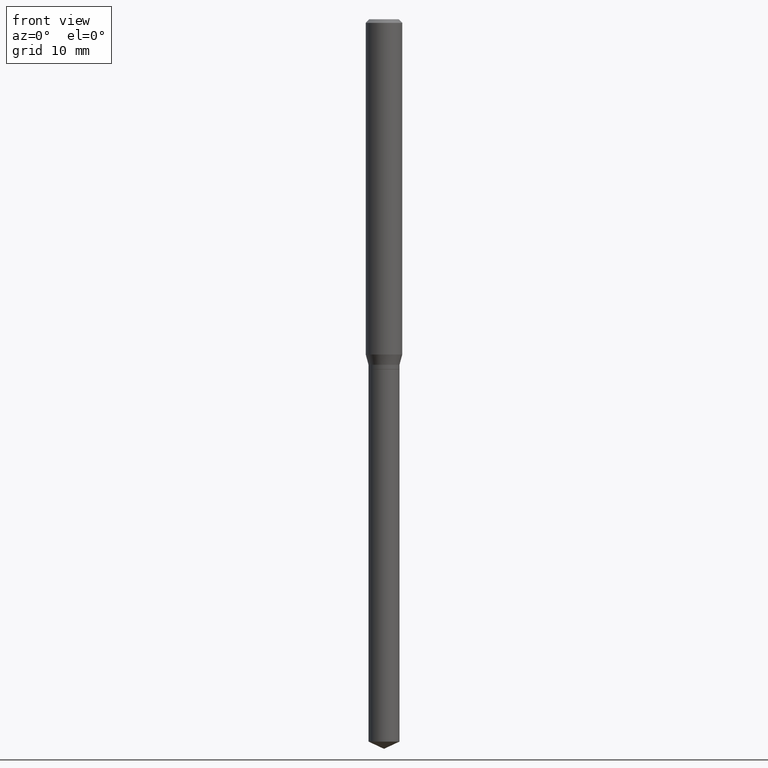
[diagram: clean part render]
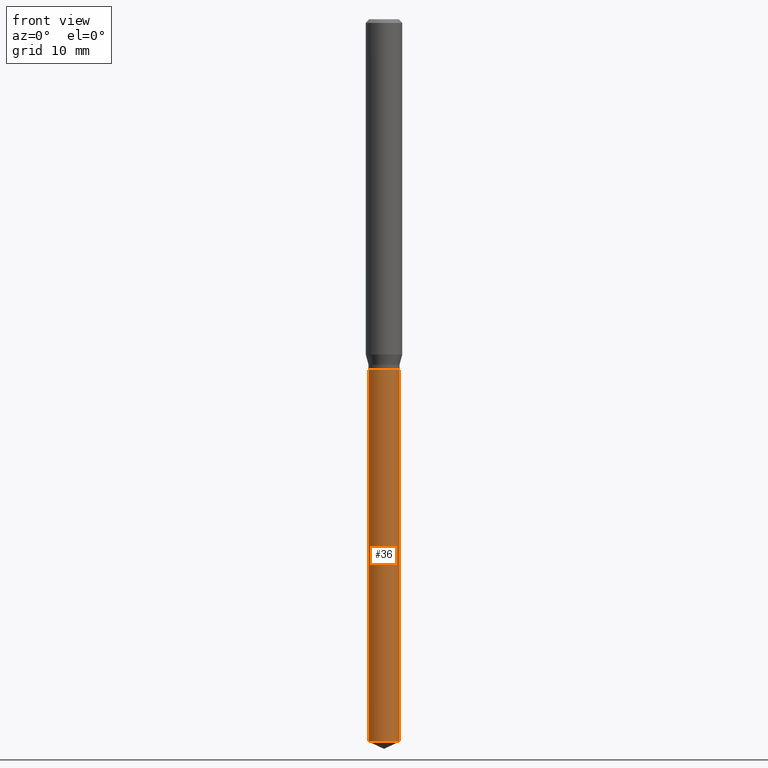
[diagram: same view with one face highlighted and labeled with its STEP entity id]
A machine part, front view. The second image highlights one B-rep face of the part: STEP entity #36.
In plain terms, the highlighted cylindrical surface (edge-blend (fillet) strip) has radius 1.2751 mm, axis along (-0, 0, 1).
Its self-contained STEP definition (entity closure, byte-faithful):
#2 = CYLINDRICAL_SURFACE ( 'NONE', #413, 0.05020000000000000157 ) ;
#9 = EDGE_CURVE ( 'NONE', #143, #186, #31, .T. ) ;
#11 = CARTESIAN_POINT ( 'NONE',  ( -0.05020000000000000157, -3.602298236762673113E-15, -1.133900000000000130 ) ) ;
#22 = DIRECTION ( 'NONE',  ( -2.445468806185136877E-29, 3.491481338843145188E-15, 1.000000000000000000 ) ) ;
#25 = ORIENTED_EDGE ( 'NONE', *, *, #460, .F. ) ;
#31 = CIRCLE ( 'NONE', #456, 0.05020000000000000157 ) ;
#33 = CARTESIAN_POINT ( 'NONE',  ( 5.719441304198943975E-29, -8.165846373387565761E-15, -2.338791355560618790 ) ) ;
#36 = ADVANCED_FACE ( 'NONE', ( #426 ), #2, .T. ) ;
#50 = CIRCLE ( 'NONE', #448, 0.05020000000000000157 ) ;
#89 = EDGE_CURVE ( 'NONE', #113, #281, #50, .T. ) ;
#90 = CARTESIAN_POINT ( 'NONE',  ( 2.772917079333326950E-29, -3.958990690114243565E-15, -1.133900000000000352 ) ) ;
#113 = VERTEX_POINT ( 'NONE', #267 ) ;
#118 = CARTESIAN_POINT ( 'NONE',  ( -0.05020000000000000850, -7.809153920035995309E-15, -2.338791355560618790 ) ) ;
#143 = VERTEX_POINT ( 'NONE', #118 ) ;
#148 = EDGE_LOOP ( 'NONE', ( #25, #210, #445, #405 ) ) ;
#159 = DIRECTION ( 'NONE',  ( -2.445468806185136597E-29, 3.491481338843145583E-15, 1.000000000000000000 ) ) ;
#173 = LINE ( 'NONE', #290, #223 ) ;
#183 = DIRECTION ( 'NONE',  ( -2.445468806185136597E-29, 3.491481338843145583E-15, 1.000000000000000000 ) ) ;
#186 = VERTEX_POINT ( 'NONE', #466 ) ;
#210 = ORIENTED_EDGE ( 'NONE', *, *, #9, .T. ) ;
#223 = VECTOR ( 'NONE', #22, 39.37007874015748143 ) ;
#226 = EDGE_CURVE ( 'NONE', #186, #281, #173, .T. ) ;
#244 = CARTESIAN_POINT ( 'NONE',  ( 0.05020000000000000157, -4.309535416534094104E-15, -1.133900000000000352 ) ) ;
#267 = CARTESIAN_POINT ( 'NONE',  ( -0.05020000000000000157, -5.705726078399334605E-15, -1.133900000000000352 ) ) ;
#269 = DIRECTION ( 'NONE',  ( 1.000000000000000000, -6.982962677686262766E-15, 0.000000000000000000 ) ) ;
#281 = VERTEX_POINT ( 'NONE', #244 ) ;
#290 = CARTESIAN_POINT ( 'NONE',  ( 0.05020000000000000157, -4.309535416534093315E-15, -1.133900000000000130 ) ) ;
#305 = VECTOR ( 'NONE', #354, 39.37007874015748143 ) ;
#317 = DIRECTION ( 'NONE',  ( -2.445468806185136597E-29, 3.491481338843145583E-15, 1.000000000000000000 ) ) ;
#321 = CARTESIAN_POINT ( 'NONE',  ( 2.772917079333326390E-29, -3.958990690114243565E-15, -1.133900000000000130 ) ) ;
#346 = DIRECTION ( 'NONE',  ( 1.000000000000000000, -6.982962677686262766E-15, 0.000000000000000000 ) ) ;
#354 = DIRECTION ( 'NONE',  ( -2.445468806185136877E-29, 3.491481338843145188E-15, 1.000000000000000000 ) ) ;
#405 = ORIENTED_EDGE ( 'NONE', *, *, #89, .F. ) ;
#413 = AXIS2_PLACEMENT_3D ( 'NONE', #321, #159, #468 ) ;
#423 = LINE ( 'NONE', #11, #305 ) ;
#426 = FACE_OUTER_BOUND ( 'NONE', #148, .T. ) ;
#445 = ORIENTED_EDGE ( 'NONE', *, *, #226, .T. ) ;
#448 = AXIS2_PLACEMENT_3D ( 'NONE', #90, #317, #269 ) ;
#456 = AXIS2_PLACEMENT_3D ( 'NONE', #33, #183, #346 ) ;
#460 = EDGE_CURVE ( 'NONE', #143, #113, #423, .T. ) ;
#466 = CARTESIAN_POINT ( 'NONE',  ( 0.05020000000000000850, -8.516391099807416299E-15, -2.338791355560618790 ) ) ;
#468 = DIRECTION ( 'NONE',  ( 1.000000000000000000, -6.982962677686262766E-15, 0.000000000000000000 ) ) ;